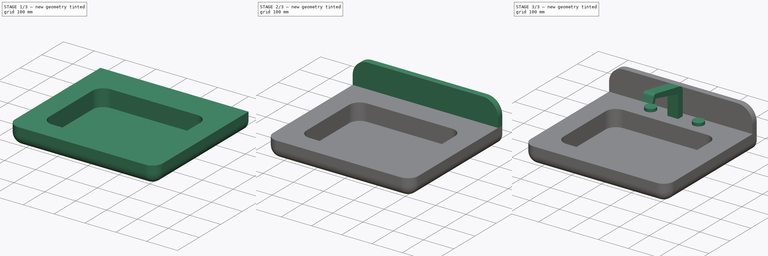
[diagram: build sequence overview — one tinted view per stage of 3, left to right]
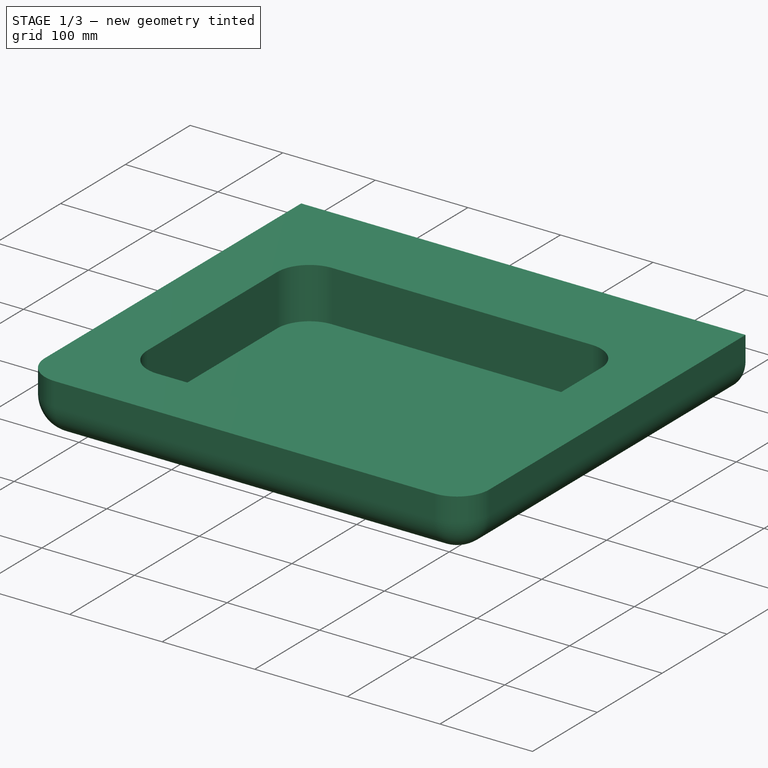
[diagram: stage 1 of 3 — iso view after this stage's code; geometry added in this stage tinted green]
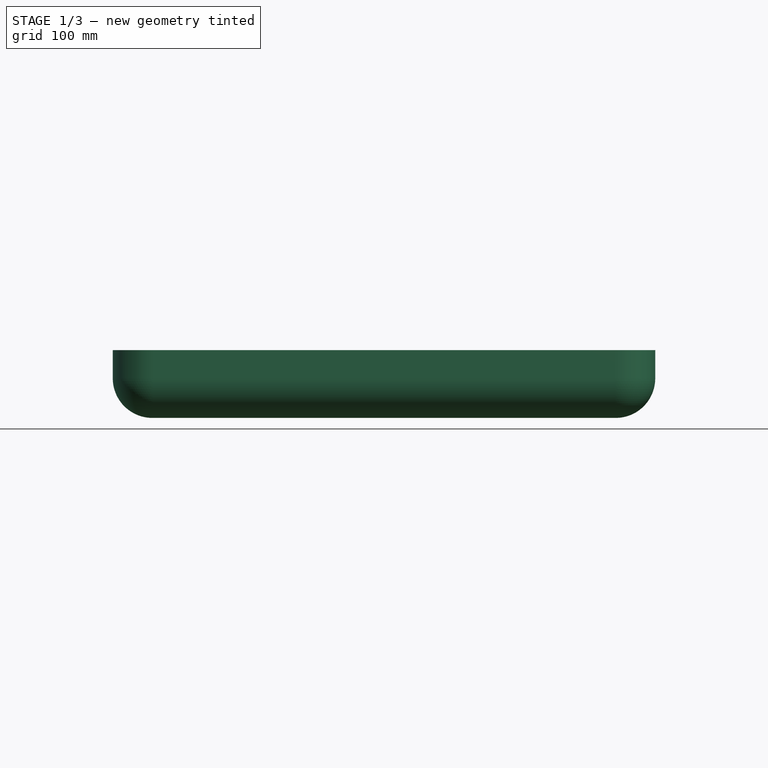
[diagram: stage 1 of 3 — front view after this stage's code; geometry added in this stage tinted green]
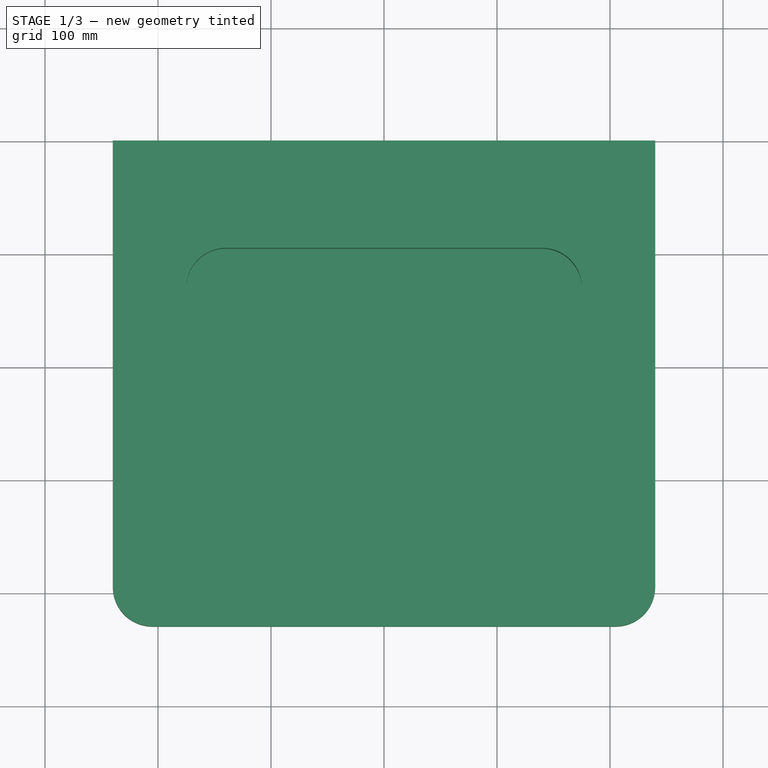
[diagram: stage 1 of 3 — top view after this stage's code; geometry added in this stage tinted green]
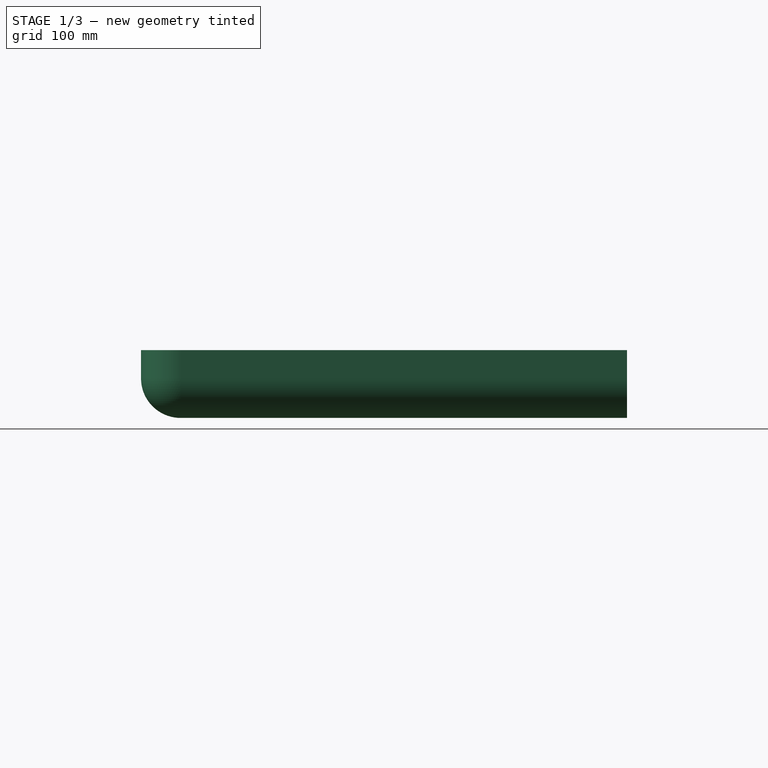
[diagram: stage 1 of 3 — right view after this stage's code; geometry added in this stage tinted green]
FCSTD DOCUMENT  (FreeCAD 0.17R8380 (Git))
Label: basin
License: CreativeCommons Attribution
LicenseURL: http://creativecommons.org/licenses/by/4.0/
objects: Sketcher::SketchObject×7, PartDesign::Pad×4, PartDesign::Plane×3, PartDesign::Fillet×2, PartDesign::Pocket×1, PartDesign::LinearPattern×1, PartDesign::Body×1, Part::Feature×1
note: 25 computed .brp shape members not serialized (recipe doc carries the construction recipe); baked Part::Feature solids carry a one-line shape summary decoded from their .brp

FEATURE [PartDesign::Plane] DatumPlane
  MapMode = 5
  Placement = pos=(0,0,850) rot=(0,0,1;0rad)
  Support = -> [XY_Plane]
  superPlacement = pos=(0,0,850) rot=(0,0,1;0rad)
FEATURE [Sketcher::SketchObject] Sketch
  MapMode = 5
  Placement = pos=(0,0,850) rot=(0,0,1;0rad)
  Support = -> [DatumPlane]
  sketch-geometry (6):
    g0: LineSegment StartX=-240 StartY=0 StartZ=0 EndX=240 EndY=0 EndZ=0
    g1: LineSegment StartX=240 StartY=0 StartZ=0 EndX=240 EndY=-395 EndZ=0
    g2: ArcOfCircle CenterX=205 CenterY=-395 CenterZ=0 NormalX=0 NormalY=0 NormalZ=1 Radius=35 StartAngle=4.71239 EndAngle=6.28319
    g3: LineSegment StartX=205 StartY=-430 StartZ=0 EndX=-205 EndY=-430 EndZ=0
    g4: ArcOfCircle CenterX=-205 CenterY=-395 CenterZ=0 NormalX=0 NormalY=0 NormalZ=1 Radius=35 StartAngle=3.14159 EndAngle=4.71239
    g5: LineSegment StartX=-240 StartY=-395 StartZ=0 EndX=-240 EndY=0 EndZ=0
  constraints (16):
    c: Horizontal(g0)
    c: Coincident(g0,g1)
    c: Vertical(g1)
    c: Tangent(g1,g2) = 1.5708
    c: Tangent(g2,g3) = 1.5708
    c: Tangent(g3,g4) = 1.5708
    c: Tangent(g4,g5) = 1.5708
    c: Coincident(g5,g0)
    c: PointOnObject(g0,g-1)
    c: Vertical(g5)
    c: Horizontal(g3)
    c: Radius(g2) = 35
    c: Radius(g4) = 35
    c: DistanceX(g0,g-1) = 240
    c: DistanceX(g0,g0) = 480
    c: DistanceY(g3,g0) = 430
FEATURE [PartDesign::Pad] Pad
  Length = 60
  Length2 = 100
  Placement = pos=(0,0,850) rot=(0,0,1;0rad)
  Profile = -> Sketch
  Reversed = true
  Type = 0
FEATURE [PartDesign::Fillet] Fillet
  Base = -> Pad [Edge13,Edge16,Edge18,Edge10,Edge7]
  BaseFeature = -> Pad
  Placement = pos=(0,0,850) rot=(0,0,1;0rad)
  Radius = 35
FEATURE [Sketcher::SketchObject] Sketch001
  MapMode = 5
  Placement = pos=(0,0,850) rot=(0,0,1;0rad)
  Support = -> [Fillet]
  sketch-geometry (8):
    g0: LineSegment StartX=-140 StartY=-95 StartZ=0 EndX=140 EndY=-95 EndZ=0
    g1: ArcOfCircle CenterX=140 CenterY=-130 CenterZ=0 NormalX=0 NormalY=0 NormalZ=1 Radius=35 StartAngle=0 EndAngle=1.5708
    g2: LineSegment StartX=175 StartY=-130 StartZ=0 EndX=175 EndY=-330 EndZ=0
    g3: ArcOfCircle CenterX=140 CenterY=-330 CenterZ=0 NormalX=0 NormalY=0 NormalZ=1 Radius=35 StartAngle=4.71239 EndAngle=6.28319
    g4: LineSegment StartX=140 StartY=-365 StartZ=0 EndX=-140 EndY=-365 EndZ=0
    g5: ArcOfCircle CenterX=-140 CenterY=-330 CenterZ=0 NormalX=0 NormalY=0 NormalZ=1 Radius=35 StartAngle=3.14159 EndAngle=4.71239
    g6: LineSegment StartX=-175 StartY=-330 StartZ=0 EndX=-175 EndY=-130 EndZ=0
    g7: ArcOfCircle CenterX=-140 CenterY=-130 CenterZ=0 NormalX=0 NormalY=0 NormalZ=1 Radius=35 StartAngle=1.5708 EndAngle=3.14159
  constraints (21):
    c: Horizontal(g0)
    c: Tangent(g0,g1) = 1.5708
    c: Tangent(g1,g2) = 1.5708
    c: Tangent(g2,g3) = 1.5708
    c: Tangent(g3,g4) = 1.5708
    c: Tangent(g4,g5) = 1.5708
    c: Tangent(g5,g6) = 1.5708
    c: Tangent(g6,g7) = 1.5708
    c: Coincident(g7,g0)
    c: Vertical(g6)
    c: Horizontal(g4)
    c: Vertical(g2)
    c: Radius(g1) = 35
    c: Radius(g3) = 35
    c: Radius(g5) = 35
    c: Radius(g7) = 35
    c: DistanceX(g6,g1) = 350
    c: DistanceY(g4,g0) = 270
    c: DistanceY(g0,g-1) = 95
    c: DistanceX(g6,g-1) = 175
    c: Tangent(g7,g0,g0) = 1.5708
FEATURE [PartDesign::Pocket] Pocket
  BaseFeature = -> Fillet
  Length = 55
  Placement = pos=(0,0,850) rot=(0,0,1;0rad)
  Profile = -> Sketch001
  Type = 0
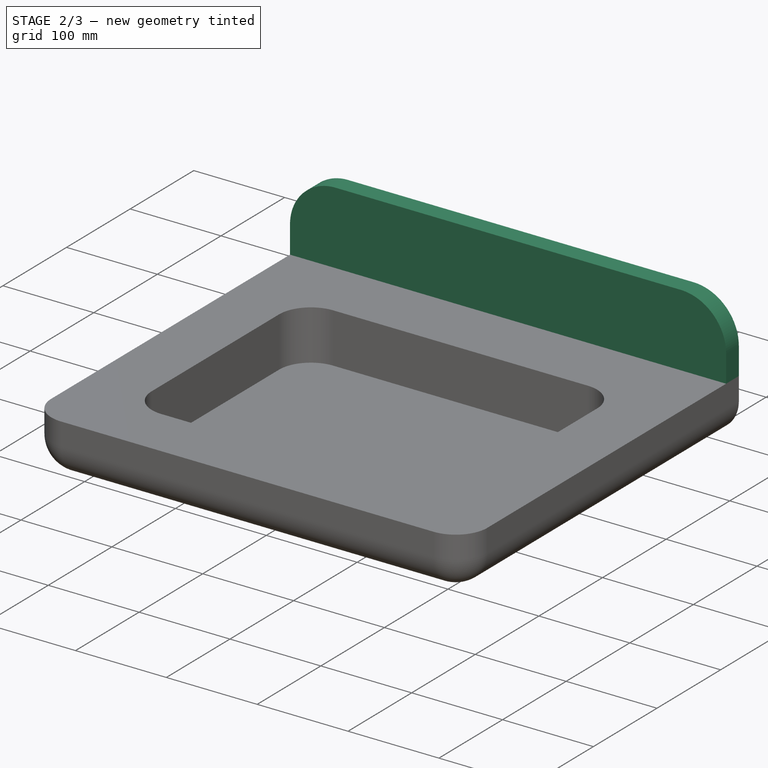
[diagram: stage 2 of 3 — iso view after this stage's code; geometry added in this stage tinted green]
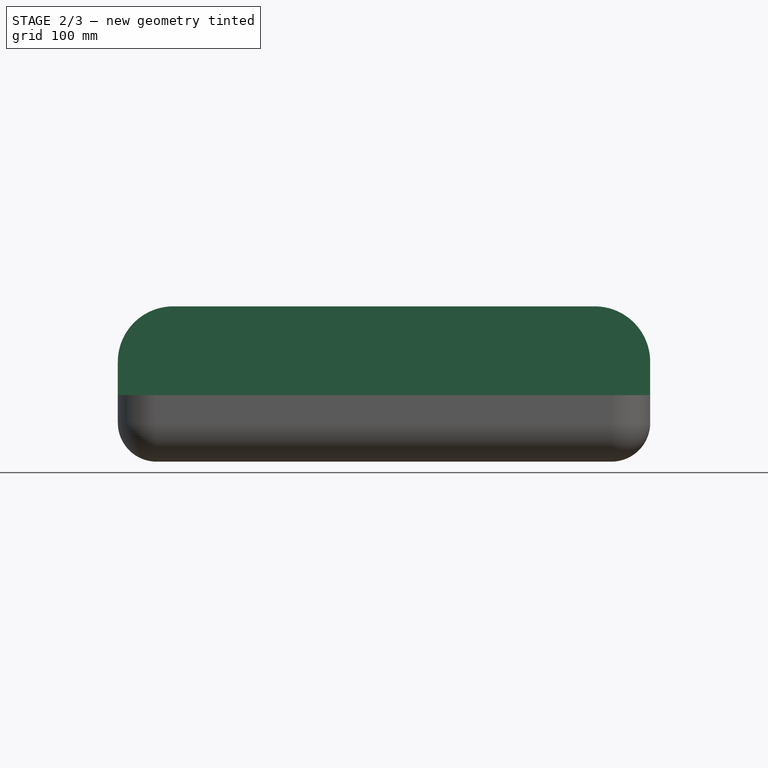
[diagram: stage 2 of 3 — front view after this stage's code; geometry added in this stage tinted green]
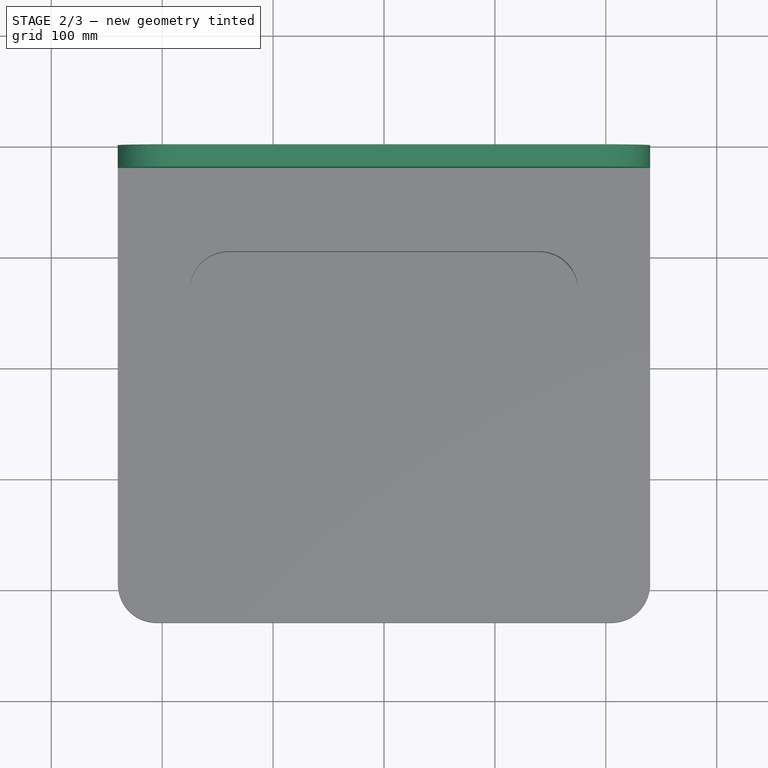
[diagram: stage 2 of 3 — top view after this stage's code; geometry added in this stage tinted green]
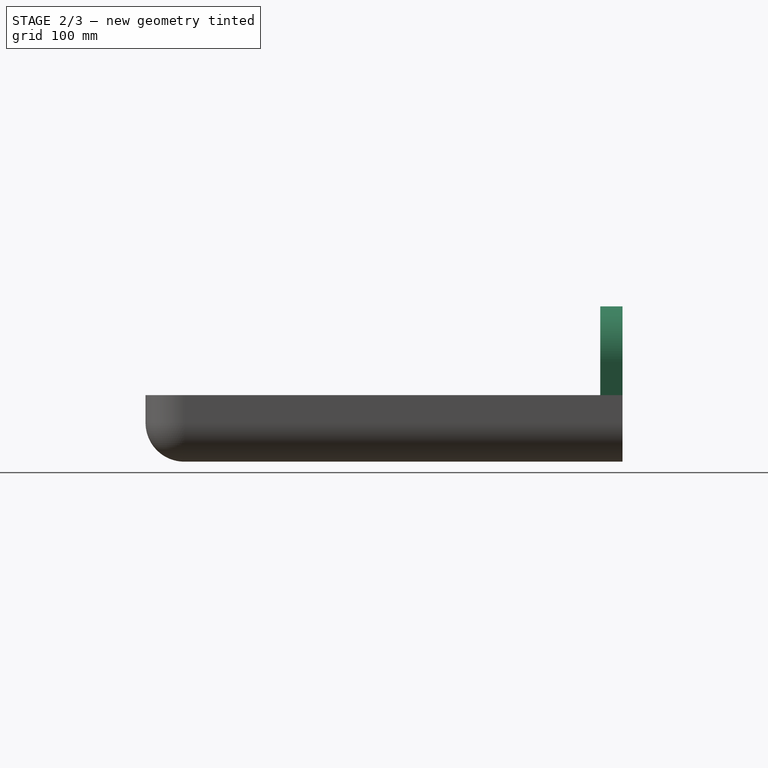
[diagram: stage 2 of 3 — right view after this stage's code; geometry added in this stage tinted green]
FEATURE [Sketcher::SketchObject] Sketch002
  MapMode = 5
  Placement = pos=(0,0,850) rot=(0,0,1;0rad)
  Support = -> [Pocket]
  sketch-geometry (4):
    g0: LineSegment StartX=-240 StartY=0 StartZ=0 EndX=240 EndY=0 EndZ=0
    g1: LineSegment StartX=240 StartY=0 StartZ=0 EndX=240 EndY=-20 EndZ=0
    g2: LineSegment StartX=240 StartY=-20 StartZ=0 EndX=-240 EndY=-20 EndZ=0
    g3: LineSegment StartX=-240 StartY=-20 StartZ=0 EndX=-240 EndY=0 EndZ=0
  constraints (12):
    c: Coincident(g0,g1)
    c: Coincident(g1,g2)
    c: Coincident(g2,g3)
    c: Coincident(g3,g0)
    c: Horizontal(g0)
    c: Horizontal(g2)
    c: Vertical(g1)
    c: Vertical(g3)
    c: PointOnObject(g0,g-1)
    c: DistanceY(g3,g3) = 20
    c: DistanceX(g2,g2) = 480
    c: DistanceX(g0,g-1) = 240
FEATURE [PartDesign::Pad] Pad001
  BaseFeature = -> Pocket
  Length = 80
  Length2 = 100
  Placement = pos=(0,0,850) rot=(0,0,1;0rad)
  Profile = -> Sketch002
  Type = 0
FEATURE [PartDesign::Fillet] Fillet001
  Base = -> Pad001 [Edge35,Edge64]
  BaseFeature = -> Pad001
  Placement = pos=(0,0,850) rot=(0,0,1;0rad)
  Radius = 50
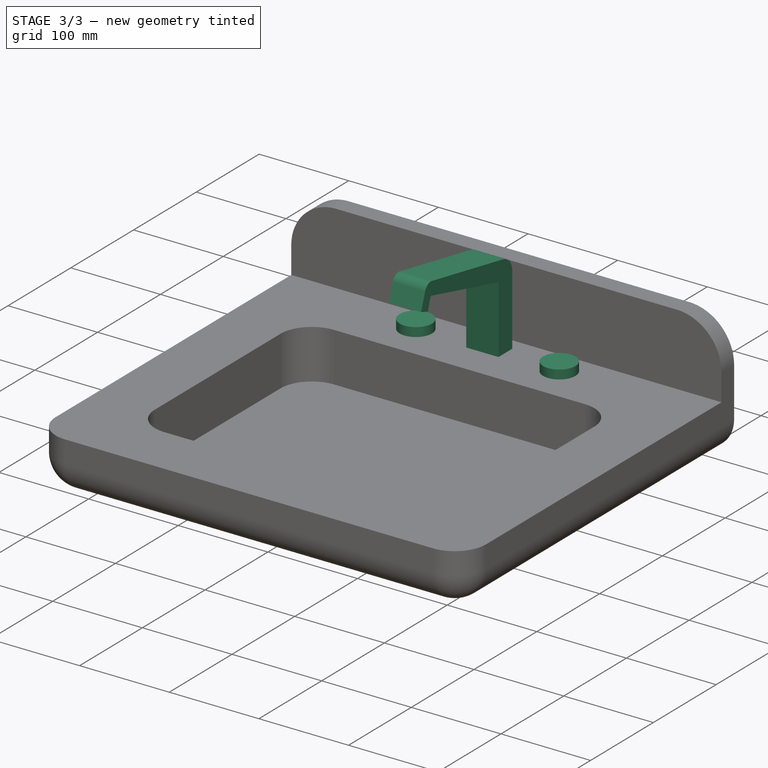
[diagram: stage 3 of 3 — iso view after this stage's code; geometry added in this stage tinted green]
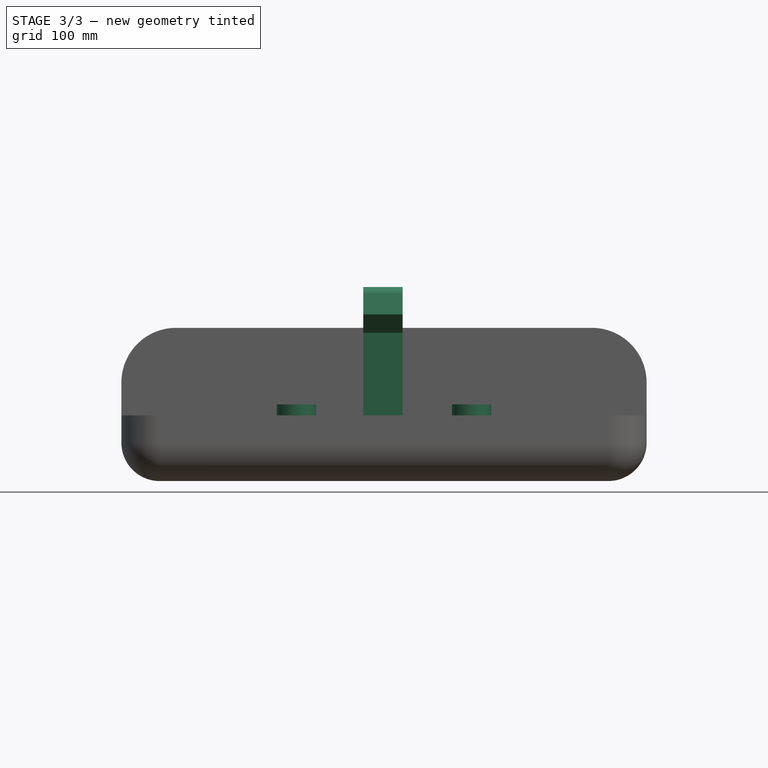
[diagram: stage 3 of 3 — front view after this stage's code; geometry added in this stage tinted green]
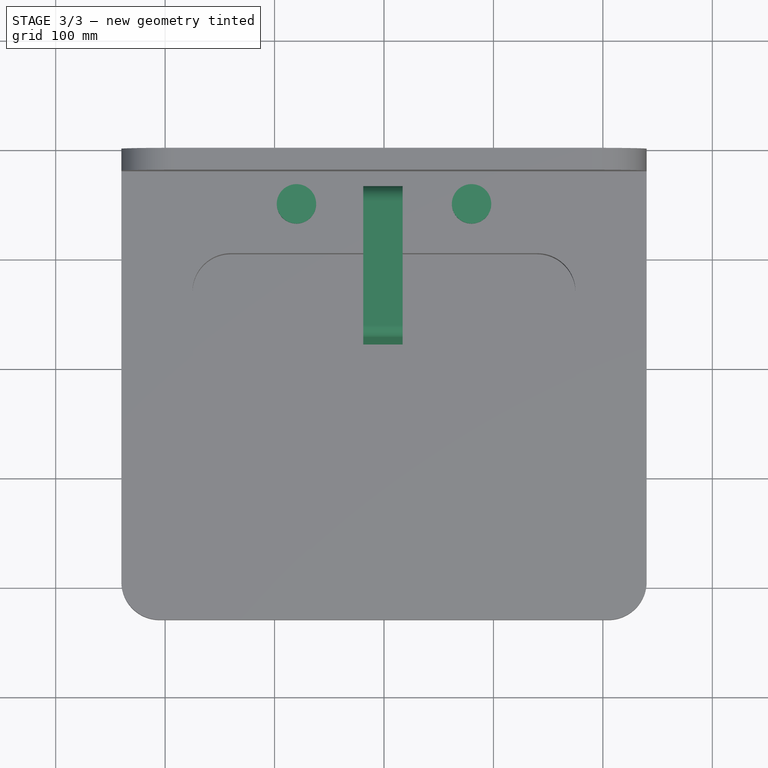
[diagram: stage 3 of 3 — top view after this stage's code; geometry added in this stage tinted green]
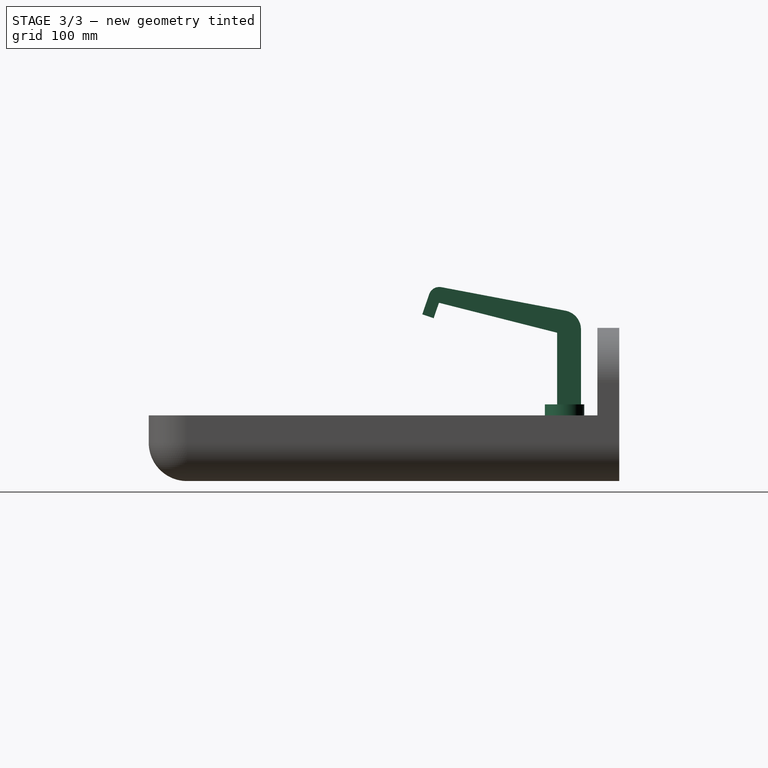
[diagram: stage 3 of 3 — right view after this stage's code; geometry added in this stage tinted green]
FEATURE [Sketcher::SketchObject] Sketch003
  MapMode = 5
  Placement = pos=(0,0,850) rot=(0,0,1;0rad)
  Support = -> [Fillet001]
  sketch-geometry (1):
    g0: Circle CenterX=-80 CenterY=-50 CenterZ=0 NormalX=0 NormalY=0 NormalZ=1 Radius=18
  constraints (3):
    c: DistanceX(g0) = -80
    c: DistanceY(g0) = -50
    c: Radius(g0) = 18
FEATURE [PartDesign::Pad] Pad002
  BaseFeature = -> Fillet001
  Length = 10
  Length2 = 100
  Placement = pos=(0,0,850) rot=(0,0,1;0rad)
  Profile = -> Sketch003
  Type = 0
FEATURE [PartDesign::LinearPattern] LinearPattern
  BaseFeature = -> Pad002
  Direction = -> Sketch003 [H_Axis]
  Length = 160
  Occurrences = 2
  Originals = -> [Pad002]
  Placement = pos=(0,0,850) rot=(0,0,1;0rad)
FEATURE [PartDesign::Plane] DatumPlane001
  MapMode = 5
  Placement = pos=(0,0,850) rot=(0,0.707107,0.707107;3.14159rad)
  Support = -> [LinearPattern]
FEATURE [Sketcher::SketchObject] Sketch004
  MapMode = 5
  Placement = pos=(0,0,850) rot=(0,0.707107,0.707107;3.14159rad)
  Support = -> [DatumPlane001]
  sketch-geometry (1):
    g0: Circle CenterX=0 CenterY=-140 CenterZ=0 NormalX=0 NormalY=0 NormalZ=1 Radius=25
  constraints (3):
    c: PointOnObject(g0,g-2)
    c: Radius(g0) = 25
    c: DistanceY(g0,g-1) = 140
FEATURE [Sketcher::SketchObject] Sketch005
  MapMode = 5
  Placement = pos=(0,0,0) rot=(0.57735,0.57735,0.57735;2.0944rad)
  Support = -> [YZ_Plane]
  sketch-geometry (4):
    g0: LineSegment StartX=0 StartY=690 StartZ=0 EndX=-47.5 EndY=690 EndZ=0
    g1: LineSegment StartX=-47.5 StartY=690 StartZ=0 EndX=-47.5 EndY=611.5 EndZ=0
    g2: ArcOfCircle CenterX=-107.5 CenterY=611.5 CenterZ=0 NormalX=0 NormalY=0 NormalZ=1 Radius=60 StartAngle=3.14159 EndAngle=6.28319
    g3: LineSegment StartX=-167.5 StartY=611.5 StartZ=0 EndX=-167.5 EndY=801.5 EndZ=0
  constraints (12):
    c: Horizontal(g0)
    c: Coincident(g0,g1)
    c: Vertical(g1)
    c: Tangent(g1,g2) = 1.5708
    c: Tangent(g2,g3) = 1.5708
    c: Vertical(g3)
    c: DistanceY(g-1,g0) = 690
    c: Radius(g2) = 60
    c: PointOnObject(g0,g-2)
    c: DistanceX(g0,g0) = 47.5
    c: DistanceY(g1,g1) = 78.5
    c: DistanceY(g3,g3) = 190
FEATURE [PartDesign::Plane] DatumPlane002
  MapMode = 5
  Placement = pos=(17,0,0) rot=(0.57735,0.57735,0.57735;2.0944rad)
  Support = -> [YZ_Plane]
  superPlacement = pos=(0,0,17) rot=(0,0,1;0rad)
FEATURE [Sketcher::SketchObject] Sketch006
  MapMode = 5
  Placement = pos=(17,0,0) rot=(0.57735,0.57735,0.57735;2.0944rad)
  Support = -> [DatumPlane002]
  sketch-geometry (10):
    g0: LineSegment StartX=-35 StartY=850 StartZ=0 EndX=-35 EndY=928.466 EndZ=0
    g1: ArcOfCircle CenterX=-52.5219 CenterY=928.466 CenterZ=0 NormalX=0 NormalY=0 NormalZ=1 Radius=17.5219 StartAngle=0 EndAngle=1.38342
    g2: LineSegment StartX=-49.258 StartY=945.681 StartZ=0 EndX=-162.646 EndY=967.179 EndZ=0
    g3: ArcOfCircle CenterX=-164.465 CenterY=957.586 CenterZ=0 NormalX=0 NormalY=0 NormalZ=1 Radius=9.7644 StartAngle=1.38342 EndAngle=2.81076
    g4: LineSegment StartX=-173.699 StartY=960.757 StartZ=0 EndX=-180.021 EndY=942.353 EndZ=0
    g5: LineSegment StartX=-180.021 StartY=942.353 StartZ=0 EndX=-169.633 EndY=938.785 EndZ=0
    g6: LineSegment StartX=-169.633 StartY=938.785 StartZ=0 EndX=-164.783 EndY=952.907 EndZ=0
    g7: LineSegment StartX=-164.783 StartY=952.907 StartZ=0 EndX=-56.839 EndY=925.531 EndZ=0
    g8: LineSegment StartX=-56.839 StartY=925.531 StartZ=0 EndX=-56.839 EndY=850 EndZ=0
    g9: LineSegment StartX=-56.839 StartY=850 StartZ=0 EndX=-35 EndY=850 EndZ=0
  constraints (15):
    c: Vertical(g0)
    c: Tangent(g0,g1) = -1.5708
    c: Tangent(g1,g2) = -1.5708
    c: Tangent(g2,g3) = -1.5708
    c: Tangent(g3,g4) = -1.5708
    c: Perpendicular(g4,g5) = 1.5708
    c: Perpendicular(g5,g6) = 1.5708
    c: Coincident(g6,g7)
    c: Coincident(g7,g8)
    c: Vertical(g8)
    c: Coincident(g9,g8)
    c: Coincident(g9,g0)
    c: Horizontal(g9)
    c: DistanceX(g0) = -35
    c: DistanceY(g0) = 850
FEATURE [PartDesign::Pad] Pad003
  BaseFeature = -> LinearPattern
  Length = 36
  Length2 = 100
  Placement = pos=(0,0,850) rot=(0,0,1;0rad)
  Profile = -> Sketch006
  Reversed = true
  Type = 0
FEATURE [PartDesign::Body] Body
  Model = -> [DatumPlane,Sketch,Pad,Fillet,Sketch001,Pocket,Sketch002,Pad001,Fillet001,Sketch003,Pad002,LinearPattern,DatumPlane001,Sketch004,Sketch005,DatumPlane002,Sketch006,Pad003]
  Origin = -> BodyOrigin
FEATURE [Part::Feature] Shape001
  Placement = pos=(0,0,-9.53345) rot=(0,0,1;0rad)
  shape: bbox 50 x 177.9 x 260.4 mm, 8 faces (baked)
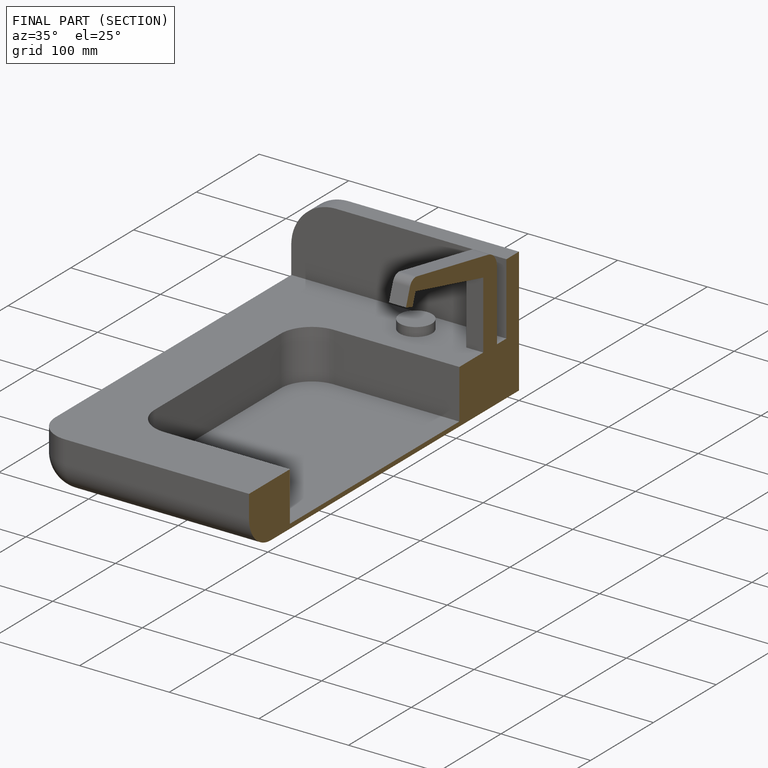
[diagram: finished part — half-section view (interior)]
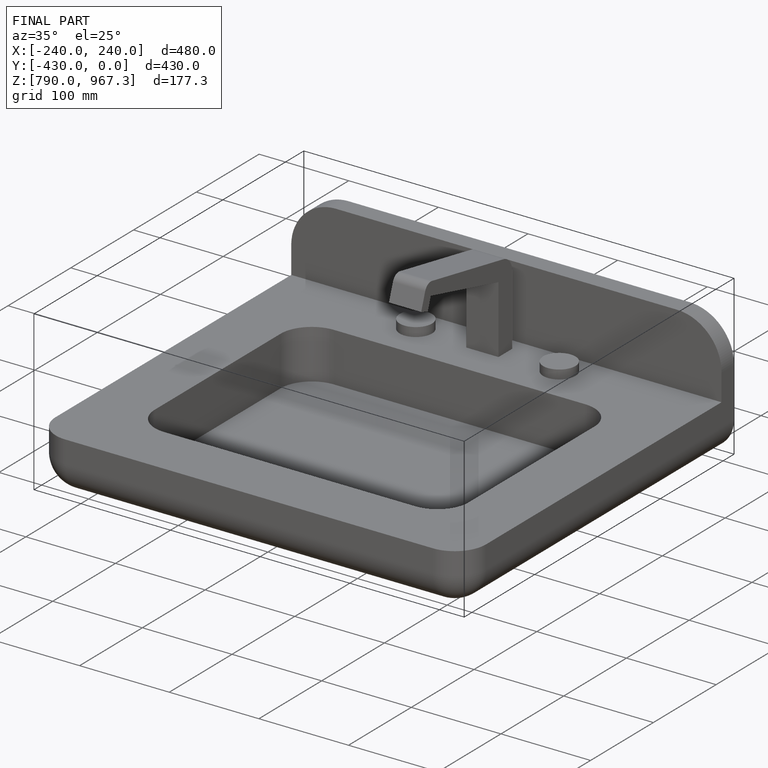
[diagram: finished part — iso view with bounding-box wireframe]
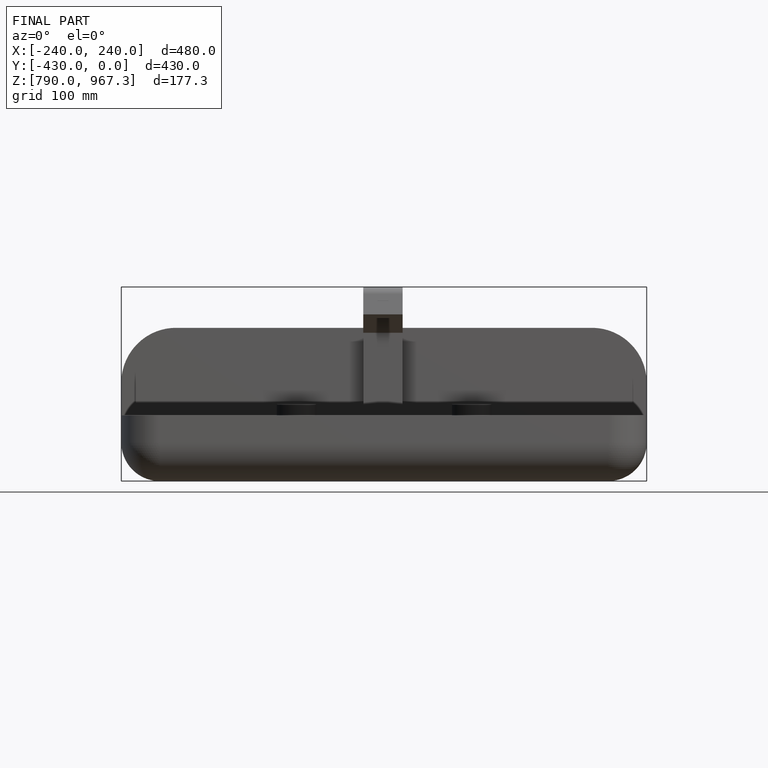
[diagram: finished part — front view with bounding-box wireframe]
